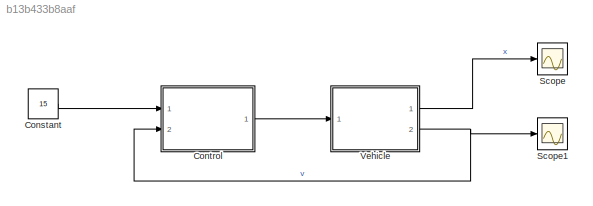
MODEL slx_b13b433b8aaf
KIND model
CONFIG AbsTol = auto
CONFIG EnableMultiTasking = off
CONFIG FixedStep = auto
CONFIG MaxStep = auto
CONFIG MinStep = auto
CONFIG RelTol = 1e-3
CONFIG SampleTimeConstraint = Unconstrained
CONFIG Solver = VariableStepAuto
CONFIG SolverName = VariableStepAuto
CONFIG StartTime = 0.0
CONFIG StopTime = 10.0
WORKSPACE source: mxarray member
WORKSPACE b = 50
WORKSPACE m = 1000
BLOCK [Constant] Constant
  Value = 15
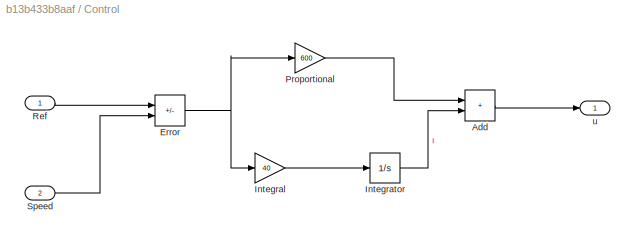
BLOCK [SubSystem] Control
  Ports = [2, 1]
  RequestExecContextInheritance = off
BLOCK [Sum] Control/Add
  IconShape = rectangular
  Ports = [2, 1]
BLOCK [Sum] Control/Error
  IconShape = rectangular
  Inputs = +-
  Ports = [2, 1]
BLOCK [Gain] Control/Integral
  Gain = 40
BLOCK [Integrator] Control/Integrator
  Ports = [1, 1]
BLOCK [Gain] Control/Proportional
  Gain = 600
BLOCK [Inport] Control/Ref
BLOCK [Inport] Control/Speed
  Port = 2
BLOCK [Outport] Control/u
BLOCK [Scope] Scope
  Floating = off
  NumInputPorts = 1
  Ports = [1]
  ScopeSpecificationString = Simulink.scopes.TimeScopeBlockCfg('CurrentConfiguration', extmgr.ConfigurationSet(extmgr.Configuration('Core','General UI',true),extmgr.Configuration('Core','Source UI',true),extmgr.Configuration('Sources','WiredSimulink',true),extmgr.Configuration('Visuals','Time Domain',true,'SerializedDisplays',{struct('MinYLimReal','-15.91329','MaxYLimReal','143.21964','YLabelReal','','MinYLimMag','0.00000','M...<+1339ch>
BLOCK [Scope] Scope1
  Floating = off
  NumInputPorts = 1
  Ports = [1]
  ScopeSpecificationString = Simulink.scopes.TimeScopeBlockCfg('CurrentConfiguration', extmgr.ConfigurationSet(extmgr.Configuration('Core','General UI',true),extmgr.Configuration('Core','Source UI',true),extmgr.Configuration('Sources','WiredSimulink',true,'DataLoggingVariableName','ScopeData1'),extmgr.Configuration('Visuals','Time Domain',true,'SerializedDisplays',{struct('MinYLimReal','-1.9038','MaxYLimReal','17.13421','YLab...<+1370ch>
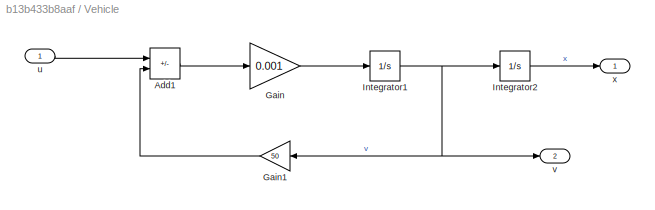
BLOCK [SubSystem] Vehicle
  Ports = [1, 2]
  RequestExecContextInheritance = off
BLOCK [Sum] Vehicle/Add1
  IconShape = rectangular
  Inputs = +-
  Ports = [2, 1]
BLOCK [Gain] Vehicle/Gain
  Gain = 0.001
BLOCK [Gain] Vehicle/Gain1
  Gain = 50
BLOCK [Integrator] Vehicle/Integrator1
  Ports = [1, 1]
BLOCK [Integrator] Vehicle/Integrator2
  Ports = [1, 1]
BLOCK [Inport] Vehicle/u
BLOCK [Outport] Vehicle/v
  Port = 2
BLOCK [Outport] Vehicle/x
LINE Constant:1 -> Control:1
LINE Control/Add:1 -> Control/u:1
NET Control/Error:1 -> Control/Integral:1, Control/Proportional:1
LINE Control/Integral:1 -> Control/Integrator:1
LINE Control/Integrator:1 -> Control/Add:2
LINE Control/Proportional:1 -> Control/Add:1
LINE Control/Ref:1 -> Control/Error:1
LINE Control/Speed:1 -> Control/Error:2
LINE Control:1 -> Vehicle:1
LINE Vehicle/Add1:1 -> Vehicle/Gain:1
LINE Vehicle/Gain1:1 -> Vehicle/Add1:2
LINE Vehicle/Gain:1 -> Vehicle/Integrator1:1
NET Vehicle/Integrator1:1 -> Vehicle/Gain1:1, Vehicle/Integrator2:1, Vehicle/v:1
LINE Vehicle/Integrator2:1 -> Vehicle/x:1
LINE Vehicle/u:1 -> Vehicle/Add1:1
LINE Vehicle:1 -> Scope:1
NET Vehicle:2 -> Control:2, Scope1:1
note: NET lines group one-source signal fan-out (src -> all destinations, sorted); 1:1 wires keep LINE
